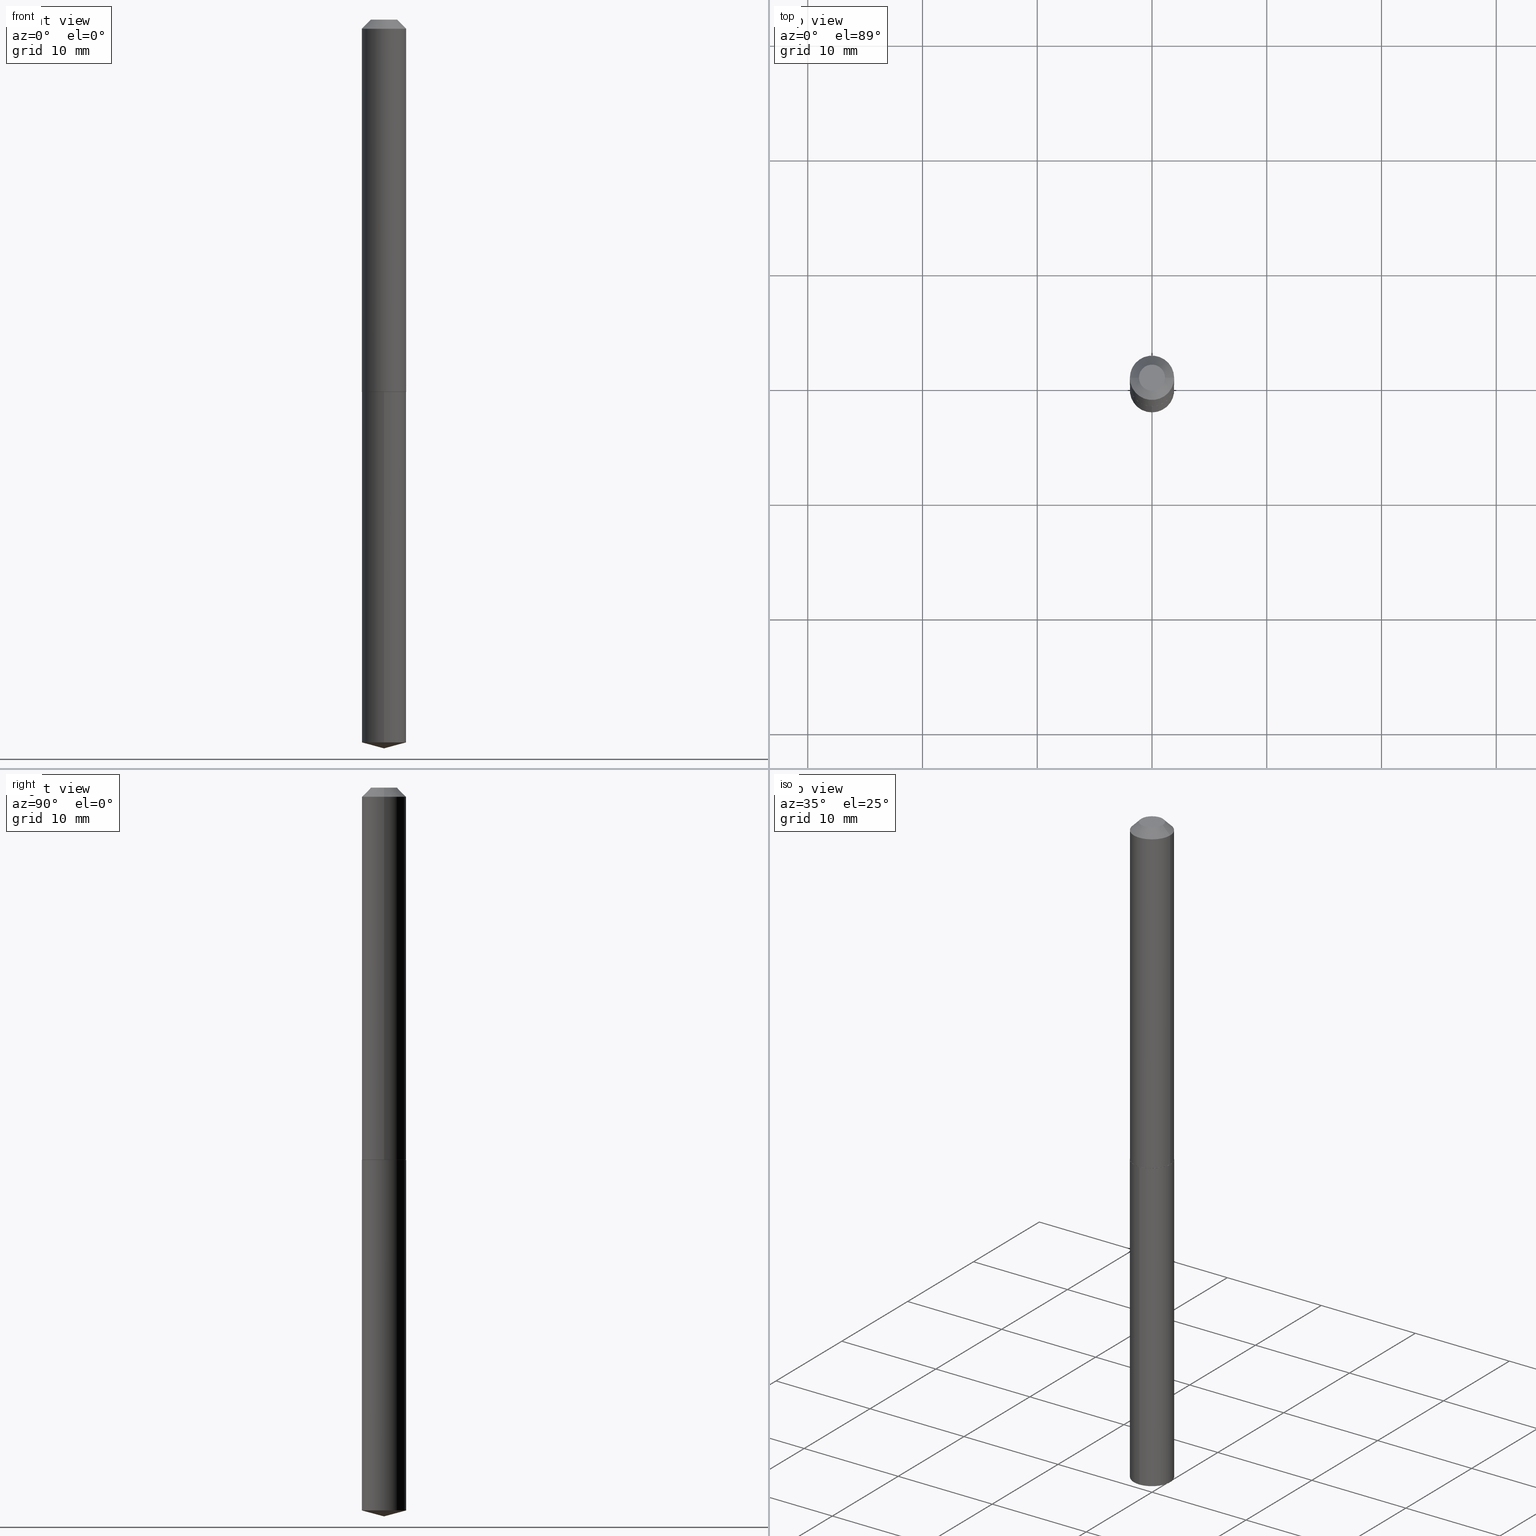
[diagram: canonical four-view strip — front | top / right | iso, engineering-drawing reading convention]
A machine part, canonical four-view strip (front | top / right | iso — engineering-drawing reading convention). The complete STEP part file that produces these views, byte-faithful:
ISO-10303-21;
HEADER;
FILE_DESCRIPTION (( 'STEP AP203' ),
    '1' );
FILE_NAME ('58026.STEP',
    '2024-04-23T00:26:48',
    ( '' ),
    ( '' ),
    'SwSTEP 2.0',
    'SolidWorks 2023',
    '' );
FILE_SCHEMA (( 'CONFIG_CONTROL_DESIGN' ));
ENDSEC;

DATA;
#1 = DIRECTION ( 'NONE',  ( -6.745023994389847810E-15, -0.9659258262890689783, 0.2588190451025185745 ) ) ;
#2 = ORIENTED_EDGE ( 'NONE', *, *, #201, .T. ) ;
#3 = LINE ( 'NONE', #55, #130 ) ;
#4 = EDGE_LOOP ( 'NONE', ( #146, #76, #121, #308 ) ) ;
#5 = DIRECTION ( 'NONE',  ( -6.982962677686265133E-15, -1.000000000000000000, 3.594536833768767206E-15 ) ) ;
#6 = CALENDAR_DATE ( 2024, 22, 4 ) ;
#7 = AXIS2_PLACEMENT_3D ( 'NONE', #343, #35, #64 ) ;
#8 = CARTESIAN_POINT ( 'NONE',  ( 6.113705153316825568E-29, -8.728656313155648720E-15, -2.500000000000000000 ) ) ;
#9 = AXIS2_PLACEMENT_3D ( 'NONE', #318, #100, #41 ) ;
#10 = ADVANCED_FACE ( 'NONE', ( #258 ), #30, .F. ) ;
#11 = CARTESIAN_POINT ( 'NONE',  ( 0.04474999999999999811, -4.687569625348806714E-16, 1.530808498961507436E-19 ) ) ;
#12 = DIRECTION ( 'NONE',  ( -2.445468806185136597E-29, 3.491481338843145583E-15, 1.000000000000000000 ) ) ;
#13 = CARTESIAN_POINT ( 'NONE',  ( 3.121640931095327453E-29, -4.456875929033275316E-15, -1.276500000000000190 ) ) ;
#14 = EDGE_LOOP ( 'NONE', ( #52, #274, #81, #216 ) ) ;
#15 = AXIS2_PLACEMENT_3D ( 'NONE', #66, #102, #320 ) ;
#16 = LOCAL_TIME ( 20, 26, 48.00000000000000000, #33 ) ;
#17 = APPLICATION_PROTOCOL_DEFINITION ( 'international standard', 'config_control_design', 1994, #80 ) ;
#18 = PERSON_AND_ORGANIZATION_ROLE ( 'design_owner' ) ;
#19 = EDGE_LOOP ( 'NONE', ( #139, #94, #365, #141 ) ) ;
#20 = DIRECTION ( 'NONE',  ( -2.445481943638452812E-29, 3.491462525262259251E-15, 1.000000000000000000 ) ) ;
#21 = CIRCLE ( 'NONE', #266, 0.04474999999999999811 ) ;
#22 = DIRECTION ( 'NONE',  ( -1.000000000000000000, 6.982962677686265922E-15, 0.000000000000000000 ) ) ;
#23 = APPROVAL_ROLE ( '' ) ;
#24 = VERTEX_POINT ( 'NONE', #289 ) ;
#25 = EDGE_LOOP ( 'NONE', ( #233, #239, #304, #59 ) ) ;
#26 = CARTESIAN_POINT ( 'NONE',  ( 3.122863665498419694E-29, -4.458621669702696819E-15, -1.277000000000000135 ) ) ;
#27 = LOCAL_TIME ( 20, 26, 48.00000000000000000, #296 ) ;
#28 = EDGE_LOOP ( 'NONE', ( #358, #306 ) ) ;
#29 = ORIENTED_EDGE ( 'NONE', *, *, #249, .T. ) ;
#30 = PLANE ( 'NONE',  #361 ) ;
#31 = SECURITY_CLASSIFICATION_LEVEL ( 'unclassified' ) ;
#32 = CC_DESIGN_DATE_AND_TIME_ASSIGNMENT ( #373, #123, ( #385 ) ) ;
#33 = COORDINATED_UNIVERSAL_TIME_OFFSET ( 5, 0, .BEHIND. ) ;
#34 = CARTESIAN_POINT ( 'NONE',  ( 7.642090019328599159E-31, -1.091087918388489774E-16, -0.03125000000000019429 ) ) ;
#35 = DIRECTION ( 'NONE',  ( -2.445481943638452812E-29, 3.491462525262259251E-15, 1.000000000000000000 ) ) ;
#36 = DIRECTION ( 'NONE',  ( -2.445481943638452812E-29, 3.491462525262259251E-15, 1.000000000000000000 ) ) ;
#37 = PRODUCT_RELATED_PRODUCT_CATEGORY ( 'detail', '', ( #386 ) ) ;
#38 = VECTOR ( 'NONE', #298, 39.37007874015748143 ) ;
#39 =( GEOMETRIC_REPRESENTATION_CONTEXT ( 3 ) GLOBAL_UNCERTAINTY_ASSIGNED_CONTEXT ( ( #337 ) ) GLOBAL_UNIT_ASSIGNED_CONTEXT ( ( #49, #231, #67 ) ) REPRESENTATION_CONTEXT ( 'NONE', 'WORKASPACE' ) );
#40 = DIRECTION ( 'NONE',  ( 1.000000000000000000, 0.000000000000000000, 0.000000000000000000 ) ) ;
#41 = DIRECTION ( 'NONE',  ( 1.000000000000000000, -6.982962677686267499E-15, 0.000000000000000000 ) ) ;
#42 = DIRECTION ( 'NONE',  ( 0.7071067811866380559, -2.468850131083205271E-15, 0.7071067811864569785 ) ) ;
#43 = CARTESIAN_POINT ( 'NONE',  ( 6.063887949263634321E-29, -8.657579711230829508E-15, -2.479635861375235173 ) ) ;
#44 = EDGE_CURVE ( 'NONE', #85, #24, #3, .T. ) ;
#45 = AXIS2_PLACEMENT_3D ( 'NONE', #68, #132, #269 ) ;
#46 = CARTESIAN_POINT ( 'NONE',  ( 0.000000000000000000, 0.000000000000000000, 0.000000000000000000 ) ) ;
#47 = ORIENTED_EDGE ( 'NONE', *, *, #178, .F. ) ;
#48 = PERSON_AND_ORGANIZATION ( #368, #192 ) ;
#49 =( CONVERSION_BASED_UNIT ( 'INCH', #254 ) LENGTH_UNIT ( ) NAMED_UNIT ( #71 ) );
#50 = DIRECTION ( 'NONE',  ( -2.445481943638452812E-29, 3.491462525262259251E-15, 1.000000000000000000 ) ) ;
#51 = CIRCLE ( 'NONE', #118, 0.07550000000000012257 ) ;
#52 = ORIENTED_EDGE ( 'NONE', *, *, #60, .F. ) ;
#53 = EDGE_CURVE ( 'NONE', #378, #85, #263, .T. ) ;
#54 = APPROVAL_DATE_TIME ( #363, #199 ) ;
#55 = CARTESIAN_POINT ( 'NONE',  ( 5.400124791777073865E-16, 0.07599999999999554334, -1.277000000000000357 ) ) ;
#56 = SHAPE_DEFINITION_REPRESENTATION ( #117, #384 ) ;
#57 = VERTEX_POINT ( 'NONE', #362 ) ;
#58 = VERTEX_POINT ( 'NONE', #186 ) ;
#59 = ORIENTED_EDGE ( 'NONE', *, *, #144, .F. ) ;
#60 = EDGE_CURVE ( 'NONE', #57, #257, #182, .T. ) ;
#61 = DIRECTION ( 'NONE',  ( -2.445468806185136877E-29, 3.491481338843145188E-15, 1.000000000000000000 ) ) ;
#62 = CONICAL_SURFACE ( 'NONE', #77, 146.9311341562583948, 1.308996938995752979 ) ;
#63 = APPROVAL_PERSON_ORGANIZATION ( #281, #120, #93 ) ;
#64 = DIRECTION ( 'NONE',  ( -6.982962677686265133E-15, -1.000000000000000000, 0.000000000000000000 ) ) ;
#65 = CC_DESIGN_PERSON_AND_ORGANIZATION_ASSIGNMENT ( #138, #18, ( #386 ) ) ;
#66 = CARTESIAN_POINT ( 'NONE',  ( 3.122863665498419694E-29, -4.458621669702696819E-15, -1.277000000000000135 ) ) ;
#67 =( NAMED_UNIT ( * ) SI_UNIT ( $, .STERADIAN. ) SOLID_ANGLE_UNIT ( ) );
#68 = CARTESIAN_POINT ( 'NONE',  ( 3.121640931095327453E-29, -4.456875929033275316E-15, -1.276500000000000190 ) ) ;
#69 = DIRECTION ( 'NONE',  ( -2.445481943638452812E-29, 3.491462525262259251E-15, 1.000000000000000000 ) ) ;
#70 = CIRCLE ( 'NONE', #247, 0.07600000000000001199 ) ;
#71 = DIMENSIONAL_EXPONENTS ( 1.000000000000000000, 0.000000000000000000, 0.000000000000000000, 0.000000000000000000, 0.000000000000000000, 0.000000000000000000, 0.000000000000000000 ) ;
#72 = DIRECTION ( 'NONE',  ( 0.7071067811865453523, -7.319954787623248157E-15, -0.7071067811865496822 ) ) ;
#73 = DIRECTION ( 'NONE',  ( -6.982962677686265133E-15, -1.000000000000000000, 3.594536833768767206E-15 ) ) ;
#74 = CARTESIAN_POINT ( 'NONE',  ( -5.307051635041250548E-16, -0.07600000000000446676, -1.276999999999999691 ) ) ;
#75 = LINE ( 'NONE', #267, #220 ) ;
#76 = ORIENTED_EDGE ( 'NONE', *, *, #134, .T. ) ;
#77 = AXIS2_PLACEMENT_3D ( 'NONE', #111, #50, #142 ) ;
#78 = LOCAL_TIME ( 20, 26, 48.00000000000000000, #109 ) ;
#79 = ADVANCED_FACE ( 'NONE', ( #286 ), #217, .T. ) ;
#80 = APPLICATION_CONTEXT ( 'configuration controlled 3d designs of mechanical parts and assemblies' ) ;
#81 = ORIENTED_EDGE ( 'NONE', *, *, #144, .T. ) ;
#82 = AXIS2_PLACEMENT_3D ( 'NONE', #43, #69, #273 ) ;
#83 = DIRECTION ( 'NONE',  ( 2.445481943638452531E-29, -3.491462525262259251E-15, -1.000000000000000000 ) ) ;
#84 = PERSON_AND_ORGANIZATION_ROLE ( 'classification_officer' ) ;
#85 = VERTEX_POINT ( 'NONE', #307 ) ;
#86 = CYLINDRICAL_SURFACE ( 'NONE', #250, 0.07600000000000001199 ) ;
#87 = ORIENTED_EDGE ( 'NONE', *, *, #316, .T. ) ;
#88 = ADVANCED_FACE ( 'NONE', ( #367 ), #92, .F. ) ;
#89 = APPROVAL_STATUS ( 'not_yet_approved' ) ;
#90 = ORIENTED_EDGE ( 'NONE', *, *, #95, .T. ) ;
#91 = AXIS2_PLACEMENT_3D ( 'NONE', #341, #333, #127 ) ;
#92 = PLANE ( 'NONE',  #105 ) ;
#93 = APPROVAL_ROLE ( '' ) ;
#94 = ORIENTED_EDGE ( 'NONE', *, *, #178, .T. ) ;
#95 = EDGE_CURVE ( 'NONE', #378, #389, #124, .T. ) ;
#96 = CIRCLE ( 'NONE', #191, 0.04474999999999999811 ) ;
#97 = CONICAL_SURFACE ( 'NONE', #388, 0.07600000000000015077, 0.7853981633975763987 ) ;
#98 = DIRECTION ( 'NONE',  ( 1.000000000000000000, -6.982962677686266711E-15, 4.876206835631325023E-29 ) ) ;
#99 = MANIFOLD_SOLID_BREP ( 'Body-Move/Copy2[2]', #113 ) ;
#100 = DIRECTION ( 'NONE',  ( -2.445468806185136597E-29, 3.491481338843145583E-15, 1.000000000000000000 ) ) ;
#101 = CARTESIAN_POINT ( 'NONE',  ( 3.122863665498419694E-29, -4.458621669702696819E-15, -1.277000000000000135 ) ) ;
#102 = DIRECTION ( 'NONE',  ( -2.445468806185136597E-29, 3.491481338843145583E-15, 1.000000000000000000 ) ) ;
#103 = CC_DESIGN_PERSON_AND_ORGANIZATION_ASSIGNMENT ( #48, #174, ( #385 ) ) ;
#104 = VECTOR ( 'NONE', #1, 39.37007874015748143 ) ;
#105 = AXIS2_PLACEMENT_3D ( 'NONE', #26, #256, #284 ) ;
#106 = PERSON_AND_ORGANIZATION ( #368, #192 ) ;
#107 = DIRECTION ( 'NONE',  ( 2.445468806185136597E-29, -3.491481338843145583E-15, -1.000000000000000000 ) ) ;
#108 = DIRECTION ( 'NONE',  ( -2.445468806185136597E-29, 3.491481338843145583E-15, 1.000000000000000000 ) ) ;
#109 = COORDINATED_UNIVERSAL_TIME_OFFSET ( 5, 0, .BEHIND. ) ;
#110 = LINE ( 'NONE', #74, #38 ) ;
#111 = CARTESIAN_POINT ( 'NONE',  ( -9.016512859611101038E-28, 1.287304741997857777E-13, 36.87007874015748143 ) ) ;
#112 = DIRECTION ( 'NONE',  ( 1.000000000000000000, -6.982962677686267499E-15, 0.000000000000000000 ) ) ;
#113 = CLOSED_SHELL ( 'NONE', ( #369, #313, #346, #88, #189, #79, #140, #122 ) ) ;
#114 = LOCAL_TIME ( 20, 26, 48.00000000000000000, #387 ) ;
#115 = CC_DESIGN_PERSON_AND_ORGANIZATION_ASSIGNMENT ( #334, #84, ( #131 ) ) ;
#116 = CARTESIAN_POINT ( 'NONE',  ( 7.642090019328599159E-31, -1.091087918388489774E-16, -0.03125000000000019429 ) ) ;
#117 = PRODUCT_DEFINITION_SHAPE ( 'NONE', 'NONE',  #385 ) ;
#118 = AXIS2_PLACEMENT_3D ( 'NONE', #172, #381, #350 ) ;
#119 = DATE_AND_TIME ( #305, #114 ) ;
#120 = APPROVAL ( #214, 'UNSPECIFIED' ) ;
#121 = ORIENTED_EDGE ( 'NONE', *, *, #340, .T. ) ;
#122 = ADVANCED_FACE ( 'NONE', ( #338 ), #190, .F. ) ;
#123 = DATE_TIME_ROLE ( 'creation_date' ) ;
#124 = LINE ( 'NONE', #222, #104 ) ;
#125 = DIRECTION ( 'NONE',  ( 6.982962677686265922E-15, 1.000000000000000000, -3.491462525262259251E-15 ) ) ;
#126 = VECTOR ( 'NONE', #344, 39.37007874015748143 ) ;
#127 = DIRECTION ( 'NONE',  ( 1.000000000000000000, -6.982962677686267499E-15, 4.876176775795935793E-29 ) ) ;
#128 = EDGE_CURVE ( 'NONE', #58, #210, #21, .T. ) ;
#129 = DIRECTION ( 'NONE',  ( -1.000000000000000000, 6.982962677686265922E-15, 0.000000000000000000 ) ) ;
#130 = VECTOR ( 'NONE', #153, 39.37007874015748143 ) ;
#131 = SECURITY_CLASSIFICATION ( '', '', #31 ) ;
#132 = DIRECTION ( 'NONE',  ( -2.445468806185136597E-29, 3.491481338843145583E-15, 1.000000000000000000 ) ) ;
#133 = MECHANICAL_CONTEXT ( 'NONE', #276, 'mechanical' ) ;
#134 = EDGE_CURVE ( 'NONE', #85, #389, #275, .T. ) ;
#135 = DIRECTION ( 'NONE',  ( 1.000000000000000000, -6.982962677686266711E-15, 4.876206835631325023E-29 ) ) ;
#136 = CARTESIAN_POINT ( 'NONE',  ( 3.122863665498419694E-29, -4.458621669702696819E-15, -1.277000000000000135 ) ) ;
#137 = CLOSED_SHELL ( 'NONE', ( #325, #303, #255, #383, #10 ) ) ;
#138 = PERSON_AND_ORGANIZATION ( #368, #192 ) ;
#139 = ORIENTED_EDGE ( 'NONE', *, *, #213, .F. ) ;
#140 = ADVANCED_FACE ( 'NONE', ( #347 ), #143, .T. ) ;
#141 = ORIENTED_EDGE ( 'NONE', *, *, #208, .F. ) ;
#142 = DIRECTION ( 'NONE',  ( -6.982962677686267499E-15, -1.000000000000000000, 3.510303681827559575E-15 ) ) ;
#143 = CONICAL_SURFACE ( 'NONE', #204, 0.07599999999999999811, 0.7853981633974452814 ) ;
#144 = EDGE_CURVE ( 'NONE', #155, #147, #272, .T. ) ;
#145 = PERSON_AND_ORGANIZATION ( #368, #192 ) ;
#146 = ORIENTED_EDGE ( 'NONE', *, *, #44, .F. ) ;
#147 = VERTEX_POINT ( 'NONE', #372 ) ;
#148 = AXIS2_PLACEMENT_3D ( 'NONE', #101, #36, #73 ) ;
#149 = ORIENTED_EDGE ( 'NONE', *, *, #316, .F. ) ;
#150 = AXIS2_PLACEMENT_3D ( 'NONE', #380, #195, #40 ) ;
#151 = APPROVAL_DATE_TIME ( #158, #120 ) ;
#152 = EDGE_CURVE ( 'NONE', #155, #57, #329, .T. ) ;
#153 = DIRECTION ( 'NONE',  ( -2.445481943638452812E-29, 3.491462525262259251E-15, 1.000000000000000000 ) ) ;
#154 = DIRECTION ( 'NONE',  ( -2.445481943638452812E-29, 3.491462525262259251E-15, 1.000000000000000000 ) ) ;
#155 = VERTEX_POINT ( 'NONE', #196 ) ;
#156 = VECTOR ( 'NONE', #352, 39.37007874015748143 ) ;
#157 = APPROVAL_PERSON_ORGANIZATION ( #106, #390, #205 ) ;
#158 = DATE_AND_TIME ( #6, #226 ) ;
#159 = CARTESIAN_POINT ( 'NONE',  ( -0.07600000000000006750, 5.400124791776766209E-16, -3.738390668593732200E-30 ) ) ;
#160 = LINE ( 'NONE', #297, #262 ) ;
#161 = CARTESIAN_POINT ( 'NONE',  ( -3.743544432386673062E-48, 5.344789307371237567E-34, 1.530808498934197508E-19 ) ) ;
#162 = CARTESIAN_POINT ( 'NONE',  ( -9.016512859611101038E-28, 1.287304741997857777E-13, 36.87007874015748143 ) ) ;
#163 = AXIS2_PLACEMENT_3D ( 'NONE', #136, #166, #348 ) ;
#164 = CC_DESIGN_SECURITY_CLASSIFICATION ( #131, ( #268 ) ) ;
#165 = DIRECTION ( 'NONE',  ( 1.000000000000000000, -6.982962677686267499E-15, 0.000000000000000000 ) ) ;
#166 = DIRECTION ( 'NONE',  ( -2.445481943638452812E-29, 3.491462525262259251E-15, 1.000000000000000000 ) ) ;
#167 = DIRECTION ( 'NONE',  ( -2.445468806185136597E-29, 3.491481338843145583E-15, 1.000000000000000000 ) ) ;
#168 = CYLINDRICAL_SURFACE ( 'NONE', #163, 0.07600000000000001199 ) ;
#169 = EDGE_LOOP ( 'NONE', ( #244, #90, #223 ) ) ;
#170 = CC_DESIGN_APPROVAL ( #390, ( #385 ) ) ;
#171 = DATE_AND_TIME ( #237, #78 ) ;
#172 = CARTESIAN_POINT ( 'NONE',  ( 3.122863665498419694E-29, -4.458621669702696819E-15, -1.277000000000000135 ) ) ;
#173 = ORIENTED_EDGE ( 'NONE', *, *, #340, .F. ) ;
#174 = PERSON_AND_ORGANIZATION_ROLE ( 'creator' ) ;
#175 = VERTEX_POINT ( 'NONE', #314 ) ;
#176 = EDGE_LOOP ( 'NONE', ( #253, #241, #209, #173 ) ) ;
#177 = VECTOR ( 'NONE', #251, 39.37007874015748854 ) ;
#178 = EDGE_CURVE ( 'NONE', #210, #147, #160, .T. ) ;
#179 = CC_DESIGN_APPROVAL ( #199, ( #268 ) ) ;
#180 = ORIENTED_EDGE ( 'NONE', *, *, #280, .T. ) ;
#181 = ORIENTED_EDGE ( 'NONE', *, *, #379, .F. ) ;
#182 = LINE ( 'NONE', #159, #198 ) ;
#183 = EDGE_CURVE ( 'NONE', #302, #175, #366, .T. ) ;
#184 = EDGE_LOOP ( 'NONE', ( #29, #180 ) ) ;
#185 = ORIENTED_EDGE ( 'NONE', *, *, #152, .F. ) ;
#186 = CARTESIAN_POINT ( 'NONE',  ( -0.04474999999999999811, 3.670419757458837964E-16, 1.530808498910438996E-19 ) ) ;
#187 = PERSON_AND_ORGANIZATION ( #368, #192 ) ;
#188 = EDGE_LOOP ( 'NONE', ( #309, #357, #364 ) ) ;
#189 = ADVANCED_FACE ( 'NONE', ( #292 ), #342, .T. ) ;
#190 = PLANE ( 'NONE',  #356 ) ;
#191 = AXIS2_PLACEMENT_3D ( 'NONE', #229, #12, #135 ) ;
#192 = ORGANIZATION ( 'UNSPECIFIED', 'UNSPECIFIED', '' ) ;
#193 = CC_DESIGN_PERSON_AND_ORGANIZATION_ASSIGNMENT ( #339, #310, ( #268 ) ) ;
#194 = DIRECTION ( 'NONE',  ( -2.445468806185136597E-29, 3.491481338843145583E-15, 1.000000000000000000 ) ) ;
#195 = DIRECTION ( 'NONE',  ( 0.000000000000000000, 0.000000000000000000, 1.000000000000000000 ) ) ;
#196 = CARTESIAN_POINT ( 'NONE',  ( 0.07600000000000015077, -4.987581092537432911E-15, -1.276500000000000190 ) ) ;
#197 = CARTESIAN_POINT ( 'NONE',  ( -5.307051635041250548E-16, -0.07600000000000446676, -1.276999999999999691 ) ) ;
#198 = VECTOR ( 'NONE', #61, 39.37007874015748143 ) ;
#199 = APPROVAL ( #89, 'UNSPECIFIED' ) ;
#200 = FACE_OUTER_BOUND ( 'NONE', #176, .T. ) ;
#201 = EDGE_CURVE ( 'NONE', #257, #147, #225, .T. ) ;
#202 = FACE_OUTER_BOUND ( 'NONE', #25, .T. ) ;
#203 = DIRECTION ( 'NONE',  ( 1.000000000000000000, -6.982962677686267499E-15, 0.000000000000000000 ) ) ;
#204 = AXIS2_PLACEMENT_3D ( 'NONE', #34, #107, #129 ) ;
#205 = APPROVAL_ROLE ( '' ) ;
#206 = CARTESIAN_POINT ( 'NONE',  ( 3.121640931095327453E-29, -4.456875929033275316E-15, -1.276500000000000190 ) ) ;
#207 = FACE_OUTER_BOUND ( 'NONE', #169, .T. ) ;
#208 = EDGE_CURVE ( 'NONE', #58, #257, #291, .T. ) ;
#209 = ORIENTED_EDGE ( 'NONE', *, *, #249, .F. ) ;
#210 = VERTEX_POINT ( 'NONE', #11 ) ;
#211 = CARTESIAN_POINT ( 'NONE',  ( 6.113704859096132870E-29, -8.728656313155648720E-15, -2.500000000000000000 ) ) ;
#212 = CARTESIAN_POINT ( 'NONE',  ( 3.122863665498419694E-29, -4.458621669702696819E-15, -1.277000000000000135 ) ) ;
#213 = EDGE_CURVE ( 'NONE', #210, #58, #96, .T. ) ;
#214 = APPROVAL_STATUS ( 'not_yet_approved' ) ;
#215 = ORIENTED_EDGE ( 'NONE', *, *, #327, .F. ) ;
#216 = ORIENTED_EDGE ( 'NONE', *, *, #201, .F. ) ;
#217 = CYLINDRICAL_SURFACE ( 'NONE', #91, 0.07600000000000006750 ) ;
#218 = CALENDAR_DATE ( 2024, 22, 4 ) ;
#219 = EDGE_LOOP ( 'NONE', ( #215, #87, #238, #181 ) ) ;
#220 = VECTOR ( 'NONE', #42, 39.37007874015748143 ) ;
#221 = CC_DESIGN_APPROVAL ( #120, ( #131 ) ) ;
#222 = CARTESIAN_POINT ( 'NONE',  ( 6.113671306040363267E-29, -8.728704363041233150E-15, -2.500000000000000000 ) ) ;
#223 = ORIENTED_EDGE ( 'NONE', *, *, #134, .F. ) ;
#224 = DIRECTION ( 'NONE',  ( -2.445468806185136597E-29, 3.491481338843145583E-15, 1.000000000000000000 ) ) ;
#225 = CIRCLE ( 'NONE', #328, 0.07599999999999999811 ) ;
#226 = LOCAL_TIME ( 20, 26, 48.00000000000000000, #332 ) ;
#227 = CARTESIAN_POINT ( 'NONE',  ( 7.642090019328599159E-31, -1.091087918388489774E-16, -0.03125000000000019429 ) ) ;
#228 = DIRECTION ( 'NONE',  ( 1.000000000000000000, -6.982962677686267499E-15, 4.876176775795935793E-29 ) ) ;
#229 = CARTESIAN_POINT ( 'NONE',  ( -3.743544432386673062E-48, 5.344789307371237567E-34, 1.530808498934197508E-19 ) ) ;
#230 = DIRECTION ( 'NONE',  ( -2.445468806185136597E-29, 3.491481338843145583E-15, 1.000000000000000000 ) ) ;
#231 =( NAMED_UNIT ( * ) PLANE_ANGLE_UNIT ( ) SI_UNIT ( $, .RADIAN. ) );
#232 = AXIS2_PLACEMENT_3D ( 'NONE', #162, #354, #294 ) ;
#233 = ORIENTED_EDGE ( 'NONE', *, *, #152, .T. ) ;
#234 = APPROVAL_STATUS ( 'not_yet_approved' ) ;
#235 = CARTESIAN_POINT ( 'NONE',  ( -0.07599999999999999811, 4.215963716653072620E-16, -0.03125000000000019429 ) ) ;
#236 = DIRECTION ( 'NONE',  ( 1.000000000000000000, -6.982962677686267499E-15, 0.000000000000000000 ) ) ;
#237 = CALENDAR_DATE ( 2024, 22, 4 ) ;
#238 = ORIENTED_EDGE ( 'NONE', *, *, #331, .T. ) ;
#239 = ORIENTED_EDGE ( 'NONE', *, *, #60, .T. ) ;
#240 = CC_DESIGN_PERSON_AND_ORGANIZATION_ASSIGNMENT ( #145, #252, ( #268 ) ) ;
#241 = ORIENTED_EDGE ( 'NONE', *, *, #44, .T. ) ;
#242 = CIRCLE ( 'NONE', #330, 0.07600000000000015077 ) ;
#243 = CARTESIAN_POINT ( 'NONE',  ( 3.122863665498419694E-29, -4.458621669702696819E-15, -1.277000000000000135 ) ) ;
#244 = ORIENTED_EDGE ( 'NONE', *, *, #53, .F. ) ;
#245 = DIRECTION ( 'NONE',  ( -2.445468806185136597E-29, 3.491481338843145583E-15, 1.000000000000000000 ) ) ;
#246 = MANIFOLD_SOLID_BREP ( 'Body-Move/Copy2[1]', #137 ) ;
#247 = AXIS2_PLACEMENT_3D ( 'NONE', #243, #20, #382 ) ;
#248 = ORIENTED_EDGE ( 'NONE', *, *, #183, .F. ) ;
#249 = EDGE_CURVE ( 'NONE', #290, #24, #70, .T. ) ;
#250 = AXIS2_PLACEMENT_3D ( 'NONE', #311, #154, #5 ) ;
#251 = DIRECTION ( 'NONE',  ( 6.863315791527702148E-15, 0.9659258262890707547, 0.2588190451025118022 ) ) ;
#252 = PERSON_AND_ORGANIZATION_ROLE ( 'design_supplier' ) ;
#253 = ORIENTED_EDGE ( 'NONE', *, *, #259, .T. ) ;
#254 = LENGTH_MEASURE_WITH_UNIT ( LENGTH_MEASURE( 0.02539999999999999897 ), #261 );
#255 = ADVANCED_FACE ( 'NONE', ( #207 ), #62, .T. ) ;
#256 = DIRECTION ( 'NONE',  ( -2.438088387897960049E-29, 3.491481338843145188E-15, 1.000000000000000000 ) ) ;
#257 = VERTEX_POINT ( 'NONE', #277 ) ;
#258 = FACE_OUTER_BOUND ( 'NONE', #184, .T. ) ;
#259 = EDGE_CURVE ( 'NONE', #389, #85, #299, .T. ) ;
#260 = ORIENTED_EDGE ( 'NONE', *, *, #208, .T. ) ;
#261 =( LENGTH_UNIT ( ) NAMED_UNIT ( * ) SI_UNIT ( $, .METRE. ) );
#262 = VECTOR ( 'NONE', #72, 39.37007874015748143 ) ;
#263 = LINE ( 'NONE', #8, #177 ) ;
#264 = DIRECTION ( 'NONE',  ( 2.438088387897960049E-29, -3.491481338843145188E-15, -1.000000000000000000 ) ) ;
#265 = CARTESIAN_POINT ( 'NONE',  ( 0.07600000000000006750, -5.307051635041568064E-16, 3.705894349604914454E-30 ) ) ;
#266 = AXIS2_PLACEMENT_3D ( 'NONE', #161, #224, #98 ) ;
#267 = CARTESIAN_POINT ( 'NONE',  ( 0.07600000000000015077, -4.987581092537432911E-15, -1.276500000000000190 ) ) ;
#268 = PRODUCT_DEFINITION_FORMATION_WITH_SPECIFIED_SOURCE ( 'ANY', '', #386, .NOT_KNOWN. ) ;
#269 = DIRECTION ( 'NONE',  ( 1.000000000000000000, -6.982962677686267499E-15, 0.000000000000000000 ) ) ;
#270 = CALENDAR_DATE ( 2024, 22, 4 ) ;
#271 = FACE_OUTER_BOUND ( 'NONE', #188, .T. ) ;
#272 = LINE ( 'NONE', #265, #126 ) ;
#273 = DIRECTION ( 'NONE',  ( -6.982962677686265133E-15, -1.000000000000000000, 0.000000000000000000 ) ) ;
#274 = ORIENTED_EDGE ( 'NONE', *, *, #379, .T. ) ;
#275 = CIRCLE ( 'NONE', #7, 0.07600000000000001199 ) ;
#276 = APPLICATION_CONTEXT ( 'configuration controlled 3d designs of mechanical parts and assemblies' ) ;
#277 = CARTESIAN_POINT ( 'NONE',  ( -0.07599999999999999811, -1.742979881258384404E-15, -0.03125000000000019429 ) ) ;
#278 = ORIENTED_EDGE ( 'NONE', *, *, #331, .F. ) ;
#279 = ORIENTED_EDGE ( 'NONE', *, *, #327, .T. ) ;
#280 = EDGE_CURVE ( 'NONE', #24, #290, #324, .T. ) ;
#281 = PERSON_AND_ORGANIZATION ( #368, #192 ) ;
#282 = EDGE_LOOP ( 'NONE', ( #47, #359, #260, #2 ) ) ;
#283 = CONICAL_SURFACE ( 'NONE', #326, 0.07599999999999999811, 0.7853981633974452814 ) ;
#284 = DIRECTION ( 'NONE',  ( 1.000000000000000000, -6.982962677686265922E-15, 4.876176775795935793E-29 ) ) ;
#285 = CARTESIAN_POINT ( 'NONE',  ( -5.307051635040953739E-16, -0.07600000000000863010, -2.479635861375235173 ) ) ;
#286 = FACE_OUTER_BOUND ( 'NONE', #14, .T. ) ;
#287 = EDGE_CURVE ( 'NONE', #147, #257, #376, .T. ) ;
#288 = DATE_TIME_ROLE ( 'classification_date' ) ;
#289 = CARTESIAN_POINT ( 'NONE',  ( 5.400124791777368701E-16, 0.07599999999999554334, -1.277000000000000357 ) ) ;
#290 = VERTEX_POINT ( 'NONE', #197 ) ;
#291 = LINE ( 'NONE', #235, #156 ) ;
#292 = FACE_OUTER_BOUND ( 'NONE', #219, .T. ) ;
#293 = VECTOR ( 'NONE', #321, 39.37007874015748143 ) ;
#294 = DIRECTION ( 'NONE',  ( -6.982962677686267499E-15, -1.000000000000000000, 3.510303681827559575E-15 ) ) ;
#295 = APPROVAL_PERSON_ORGANIZATION ( #187, #199, #23 ) ;
#296 = COORDINATED_UNIVERSAL_TIME_OFFSET ( 5, 0, .BEHIND. ) ;
#297 = CARTESIAN_POINT ( 'NONE',  ( 0.07599999999999999811, -6.305066396694854024E-16, -0.03125000000000019429 ) ) ;
#298 = DIRECTION ( 'NONE',  ( -2.445481943638452812E-29, 3.491462525262259251E-15, 1.000000000000000000 ) ) ;
#299 = CIRCLE ( 'NONE', #82, 0.07600000000000001199 ) ;
#300 = EDGE_LOOP ( 'NONE', ( #248, #149 ) ) ;
#301 = DIRECTION ( 'NONE',  ( 2.445468806185136597E-29, -3.491481338843145583E-15, -1.000000000000000000 ) ) ;
#302 = VERTEX_POINT ( 'NONE', #323 ) ;
#303 = ADVANCED_FACE ( 'NONE', ( #271 ), #349, .T. ) ;
#304 = ORIENTED_EDGE ( 'NONE', *, *, #287, .F. ) ;
#305 = CALENDAR_DATE ( 2024, 22, 4 ) ;
#306 = ORIENTED_EDGE ( 'NONE', *, *, #213, .T. ) ;
#307 = CARTESIAN_POINT ( 'NONE',  ( 5.400124791777365743E-16, 0.07599999999999132450, -2.479635861375235173 ) ) ;
#308 = ORIENTED_EDGE ( 'NONE', *, *, #280, .F. ) ;
#309 = ORIENTED_EDGE ( 'NONE', *, *, #95, .F. ) ;
#310 = PERSON_AND_ORGANIZATION_ROLE ( 'creator' ) ;
#311 = CARTESIAN_POINT ( 'NONE',  ( 3.122863665498419694E-29, -4.458621669702696819E-15, -1.277000000000000135 ) ) ;
#312 = CARTESIAN_POINT ( 'NONE',  ( -1.871772216193336531E-48, 2.672394653685618784E-34, 7.654042494670987541E-20 ) ) ;
#313 = ADVANCED_FACE ( 'NONE', ( #202 ), #374, .T. ) ;
#314 = CARTESIAN_POINT ( 'NONE',  ( -0.07550000000000012257, -3.919512677029709107E-15, -1.277000000000000135 ) ) ;
#315 = CARTESIAN_POINT ( 'NONE',  ( 7.642090019328599159E-31, -1.091087918388489774E-16, -0.03125000000000019429 ) ) ;
#316 = EDGE_CURVE ( 'NONE', #175, #302, #51, .T. ) ;
#317 = APPROVAL_DATE_TIME ( #171, #390 ) ;
#318 = CARTESIAN_POINT ( 'NONE',  ( 3.121640931095327453E-29, -4.456875929033275316E-15, -1.276500000000000190 ) ) ;
#319 = CARTESIAN_POINT ( 'NONE',  ( -0.07600000000000015077, -3.916863449855597906E-15, -1.276500000000000190 ) ) ;
#320 = DIRECTION ( 'NONE',  ( 1.000000000000000000, -6.982962677686264344E-15, 0.000000000000000000 ) ) ;
#321 = DIRECTION ( 'NONE',  ( -0.7071067811866380559, 7.493145998870682326E-15, 0.7071067811864569785 ) ) ;
#322 = CC_DESIGN_DATE_AND_TIME_ASSIGNMENT ( #119, #288, ( #131 ) ) ;
#323 = CARTESIAN_POINT ( 'NONE',  ( 0.07550000000000012257, -4.985835351868010619E-15, -1.277000000000000135 ) ) ;
#324 = CIRCLE ( 'NONE', #148, 0.07600000000000001199 ) ;
#325 = ADVANCED_FACE ( 'NONE', ( #200 ), #168, .T. ) ;
#326 = AXIS2_PLACEMENT_3D ( 'NONE', #116, #301, #22 ) ;
#327 = EDGE_CURVE ( 'NONE', #175, #57, #345, .T. ) ;
#328 = AXIS2_PLACEMENT_3D ( 'NONE', #227, #167, #165 ) ;
#329 = CIRCLE ( 'NONE', #45, 0.07600000000000015077 ) ;
#330 = AXIS2_PLACEMENT_3D ( 'NONE', #206, #245, #112 ) ;
#331 = EDGE_CURVE ( 'NONE', #302, #155, #75, .T. ) ;
#332 = COORDINATED_UNIVERSAL_TIME_OFFSET ( 5, 0, .BEHIND. ) ;
#333 = DIRECTION ( 'NONE',  ( -2.445468806185136597E-29, 3.491481338843145583E-15, 1.000000000000000000 ) ) ;
#334 = PERSON_AND_ORGANIZATION ( #368, #192 ) ;
#335 = AXIS2_PLACEMENT_3D ( 'NONE', #46, #230, #228 ) ;
#336 = ORIENTED_EDGE ( 'NONE', *, *, #183, .T. ) ;
#337 = UNCERTAINTY_MEASURE_WITH_UNIT (LENGTH_MEASURE( 1.000000000000000082E-05 ), #49, 'distance_accuracy_value', 'NONE');
#338 = FACE_OUTER_BOUND ( 'NONE', #28, .T. ) ;
#339 = PERSON_AND_ORGANIZATION ( #368, #192 ) ;
#340 = EDGE_CURVE ( 'NONE', #389, #290, #110, .T. ) ;
#341 = CARTESIAN_POINT ( 'NONE',  ( 0.000000000000000000, 0.000000000000000000, 0.000000000000000000 ) ) ;
#342 = CONICAL_SURFACE ( 'NONE', #9, 0.07600000000000015077, 0.7853981633975763987 ) ;
#343 = CARTESIAN_POINT ( 'NONE',  ( 6.063887949263634321E-29, -8.657579711230829508E-15, -2.479635861375235173 ) ) ;
#344 = DIRECTION ( 'NONE',  ( -2.445468806185136877E-29, 3.491481338843145188E-15, 1.000000000000000000 ) ) ;
#345 = LINE ( 'NONE', #319, #293 ) ;
#346 = ADVANCED_FACE ( 'NONE', ( #377 ), #97, .T. ) ;
#347 = FACE_OUTER_BOUND ( 'NONE', #282, .T. ) ;
#348 = DIRECTION ( 'NONE',  ( -6.982962677686265133E-15, -1.000000000000000000, 3.594536833768767206E-15 ) ) ;
#349 = CONICAL_SURFACE ( 'NONE', #232, 146.9311341562583948, 1.308996938995752979 ) ;
#350 = DIRECTION ( 'NONE',  ( 1.000000000000000000, -6.982962677686264344E-15, 0.000000000000000000 ) ) ;
#351 = EDGE_LOOP ( 'NONE', ( #336, #279, #185, #278 ) ) ;
#352 = DIRECTION ( 'NONE',  ( -0.7071067811865453523, 2.468850131082234184E-15, -0.7071067811865496822 ) ) ;
#353 = FACE_OUTER_BOUND ( 'NONE', #19, .T. ) ;
#354 = DIRECTION ( 'NONE',  ( -2.445481943638452812E-29, 3.491462525262259251E-15, 1.000000000000000000 ) ) ;
#355 = DESIGN_CONTEXT ( 'detailed design', #80, 'design' ) ;
#356 = AXIS2_PLACEMENT_3D ( 'NONE', #312, #264, #371 ) ;
#357 = ORIENTED_EDGE ( 'NONE', *, *, #53, .T. ) ;
#358 = ORIENTED_EDGE ( 'NONE', *, *, #128, .T. ) ;
#359 = ORIENTED_EDGE ( 'NONE', *, *, #128, .F. ) ;
#360 = FACE_OUTER_BOUND ( 'NONE', #4, .T. ) ;
#361 = AXIS2_PLACEMENT_3D ( 'NONE', #212, #83, #125 ) ;
#362 = CARTESIAN_POINT ( 'NONE',  ( -0.07600000000000015077, -3.916863449855597906E-15, -1.276500000000000190 ) ) ;
#363 = DATE_AND_TIME ( #218, #16 ) ;
#364 = ORIENTED_EDGE ( 'NONE', *, *, #259, .F. ) ;
#365 = ORIENTED_EDGE ( 'NONE', *, *, #287, .T. ) ;
#366 = CIRCLE ( 'NONE', #15, 0.07550000000000012257 ) ;
#367 = FACE_OUTER_BOUND ( 'NONE', #300, .T. ) ;
#368 = PERSON ( 'UNSPECIFIED', 'UNSPECIFIED', 'UNSPECIFIED', ('UNSPECIFIED'), ('UNSPECIFIED'), ('UNSPECIFIED') ) ;
#369 = ADVANCED_FACE ( 'NONE', ( #353 ), #283, .T. ) ;
#370 = AXIS2_PLACEMENT_3D ( 'NONE', #315, #194, #203 ) ;
#371 = DIRECTION ( 'NONE',  ( -1.000000000000000000, 6.982962677686265922E-15, -4.876176775795935793E-29 ) ) ;
#372 = CARTESIAN_POINT ( 'NONE',  ( 0.07599999999999999811, -6.398139553430053154E-16, -0.03125000000000019429 ) ) ;
#373 = DATE_AND_TIME ( #270, #27 ) ;
#374 = CYLINDRICAL_SURFACE ( 'NONE', #335, 0.07600000000000006750 ) ;
#375 = APPLICATION_PROTOCOL_DEFINITION ( 'international standard', 'config_control_design', 1994, #276 ) ;
#376 = CIRCLE ( 'NONE', #370, 0.07599999999999999811 ) ;
#377 = FACE_OUTER_BOUND ( 'NONE', #351, .T. ) ;
#378 = VERTEX_POINT ( 'NONE', #211 ) ;
#379 = EDGE_CURVE ( 'NONE', #57, #155, #242, .T. ) ;
#380 = CARTESIAN_POINT ( 'NONE',  ( 0.000000000000000000, 0.000000000000000000, 0.000000000000000000 ) ) ;
#381 = DIRECTION ( 'NONE',  ( -2.445468806185136597E-29, 3.491481338843145583E-15, 1.000000000000000000 ) ) ;
#382 = DIRECTION ( 'NONE',  ( -6.982962677686265133E-15, -1.000000000000000000, 3.594536833768767206E-15 ) ) ;
#383 = ADVANCED_FACE ( 'NONE', ( #360 ), #86, .T. ) ;
#384 = ADVANCED_BREP_SHAPE_REPRESENTATION ( '58026', ( #246, #99, #150 ), #39 ) ;
#385 = PRODUCT_DEFINITION ( 'UNKNOWN', '', #268, #355 ) ;
#386 = PRODUCT ( '58026', '58026', '', ( #133 ) ) ;
#387 = COORDINATED_UNIVERSAL_TIME_OFFSET ( 5, 0, .BEHIND. ) ;
#388 = AXIS2_PLACEMENT_3D ( 'NONE', #13, #108, #236 ) ;
#389 = VERTEX_POINT ( 'NONE', #285 ) ;
#390 = APPROVAL ( #234, 'UNSPECIFIED' ) ;
ENDSEC;
END-ISO-10303-21;
